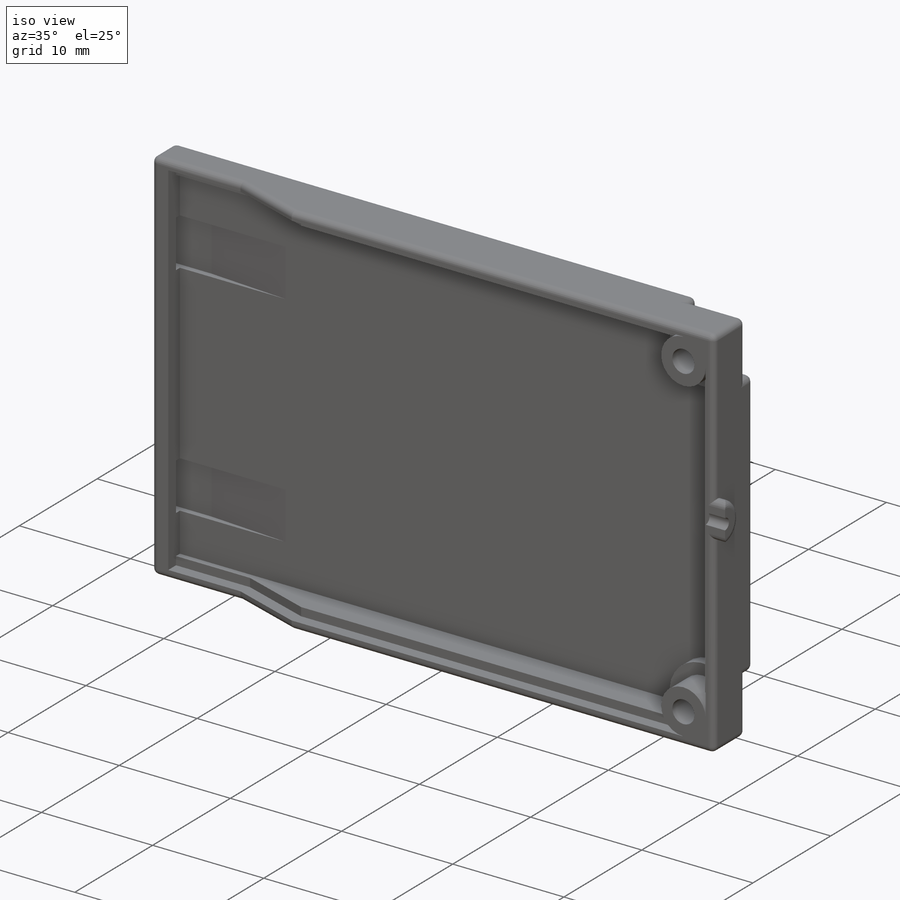
[diagram: iso view]
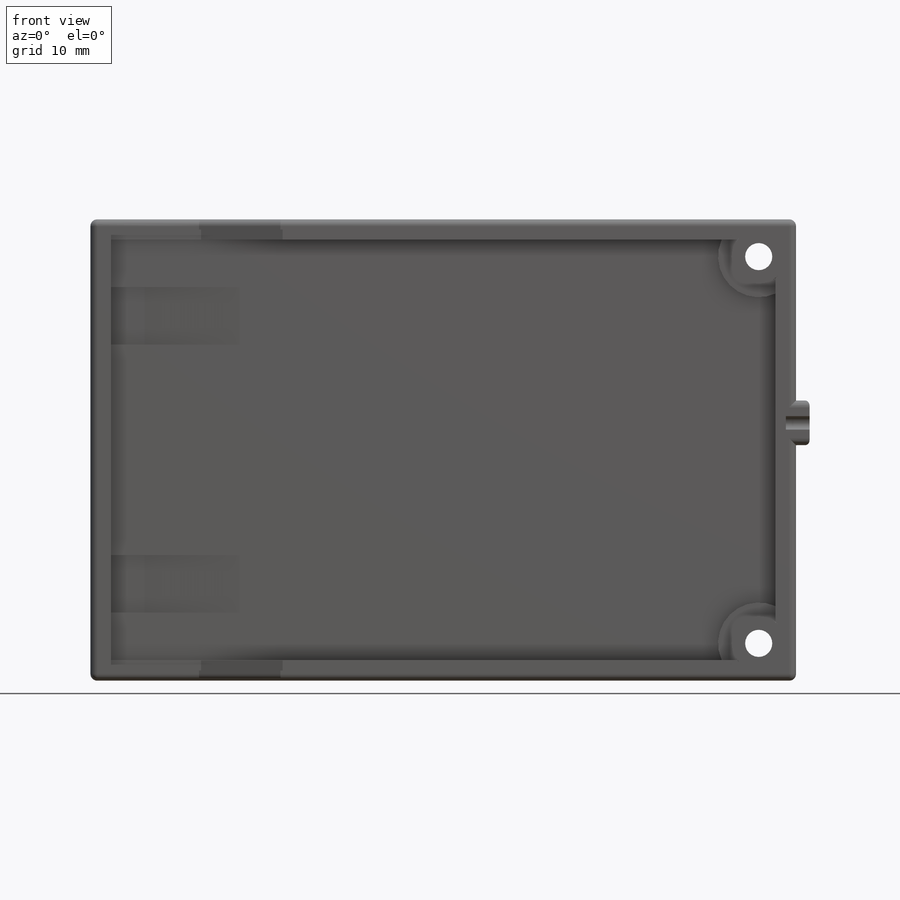
[diagram: front view]
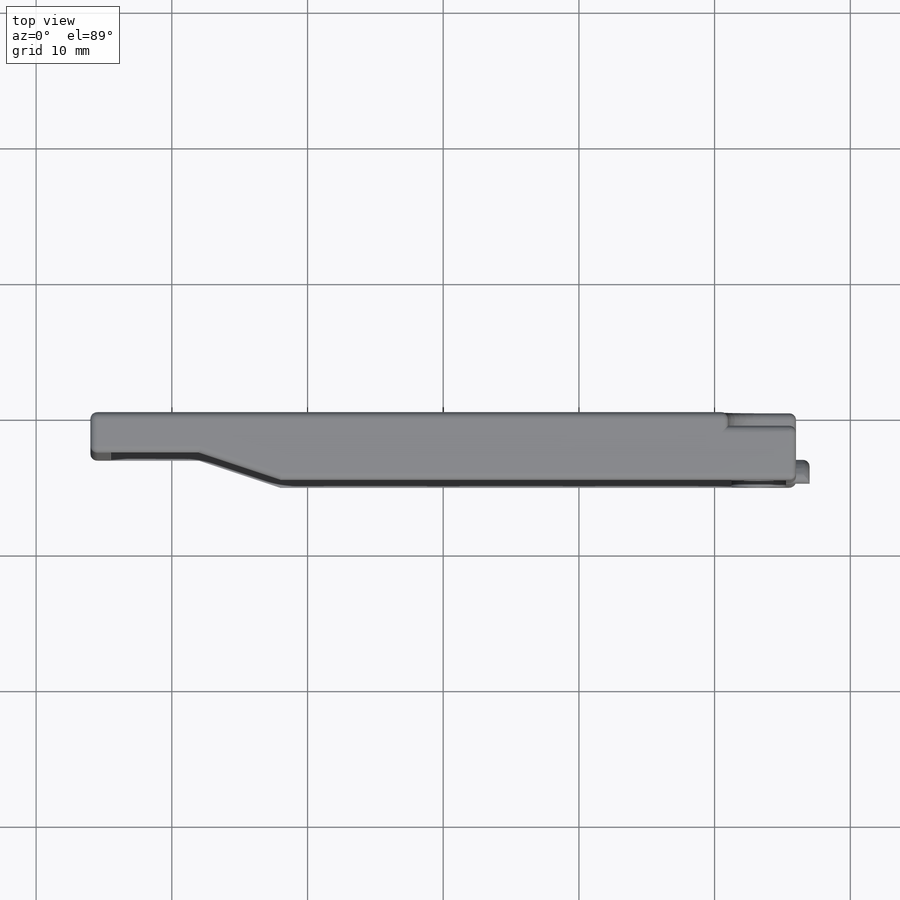
[diagram: top view]
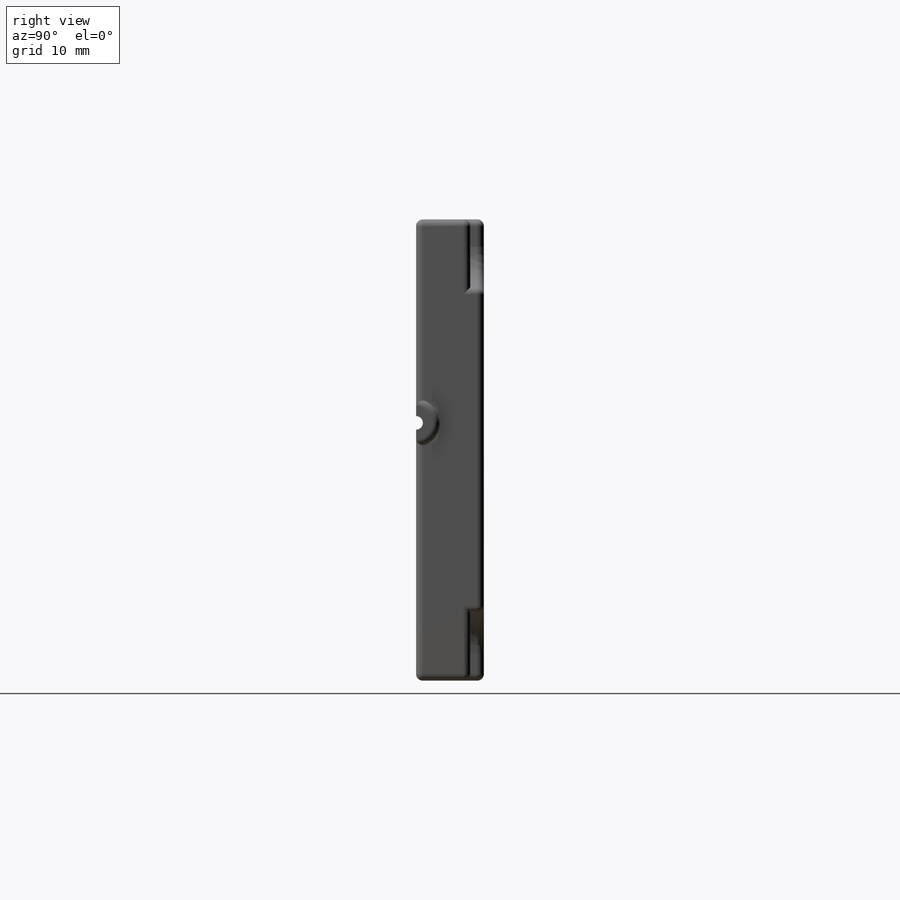
[diagram: right view]
SOLIDWORKS PART (.sldprt)
format: sldprt  version: not decoded by parser v0  size: 558,080 bytes
history: native  units: mm
features: sketch x12, cut_extrude x8, extrude x4, plane x3, mirror x3, chamfer x2, material x1, shell x1, fillet x1 (+10 scaffold rows collapsed)
feature tree (45):
  scaffold x10  (default folders/planes/origin — collapsed)
  material  "Matériau <non spécifié>"
  plane  "Plan de face"
  plane  "Plan de dessus"
  plane  "Plan de droite"
  sketch  "Esquisse1"  dims[D1=52.0mm D2=34.0mm D3=~13.938731mm]
  extrude  "Boss.-Extru.1"  Depth=5mm
  shell  "Coque1"  Thickness=1.5mm
  sketch  "Esquisse2"  dims[c1.D1=0.75mm c1.D2=0.75mm c1.D3=0.75mm c2.D1=0.0mm c2.D2=0.75mm]
  cut_extrude  "Enlèv. mat.-Extru.1"  Depth=1mm
  sketch  "Esquisse3"  dims[D1=8.0mm D2=3.0mm]
  cut_extrude  "Enlèv. mat.-Extru.2"  [1 undecoded]
  chamfer  "Chanfrein1"  Distance=2mm
  sketch  "Esquisse4"  dims[D1=0.0mm D2=1.0mm D3=1.0mm]
  cut_extrude  "Enlèv. mat.-Extru.3"  Depth=0.75mm
  mirror  "Symétrie1"
  sketch  "Esquisse5"  dims[c1.D1=1.0mm c1.D2=1.0mm c1.D3=4.5mm c1.D4=7.75mm c2.D3=5.0mm c2.D5=4.25mm c2.D4=7.75mm c3.D5=7.75mm]
  cut_extrude  "Enlèv. mat.-Extru.4"  Depth=4mm
  chamfer  "Chanfrein2"  Distance=7mm
  sketch  "Esquisse6"  dims[D1=4.0mm D2=2.0mm]
  extrude  "Boss.-Extru.3"  [1 undecoded]
  sketch  "Esquisse7"  dims[D1=1.0mm D2=0.0mm]
  extrude  "Boss.-Extru.4"  Depth=1mm
  mirror  "Symétrie2"
  sketch  "Esquisse8"  dims[c1.D1=4.0mm c1.D2=1.0mm c1.D4=1.0mm c1.D3=15.0mm c2.D4=1.0mm]
  cut_extrude  "Enlèv. mat.-Extru.5"  [1 undecoded]
  sketch  "Esquisse9"  dims[D1=3.5mm D2=0.0mm]
  extrude  "Boss.-Extru.5"  Depth=1mm
  sketch  "Esquisse10"  dims[D3=3.0mm D1=5.0mm D2=5.0mm]
  cut_extrude  "Enlèv. mat.-Extru.6"  Depth=1mm
  sketch  "Esquisse11"
  cut_extrude  "Enlèv. mat.-Extru.7"  [1 undecoded]
  mirror  "Symétrie3"
  fillet  "Congé1"  Radius=0.5mm
  sketch  "Esquisse12"  dims[D1=0.0mm]
  cut_extrude  "Enlèv. mat.-Extru.8"  [1 undecoded]
decode coverage: 22 of 31 modeling features carry decoded parameters
note: ~ marks probable driven/reference dimensions
note: 5 parameter values undecoded
summary: no parameter record found for 5 features
note: suppression state not decoded; provenance and decode notes live in map.json
